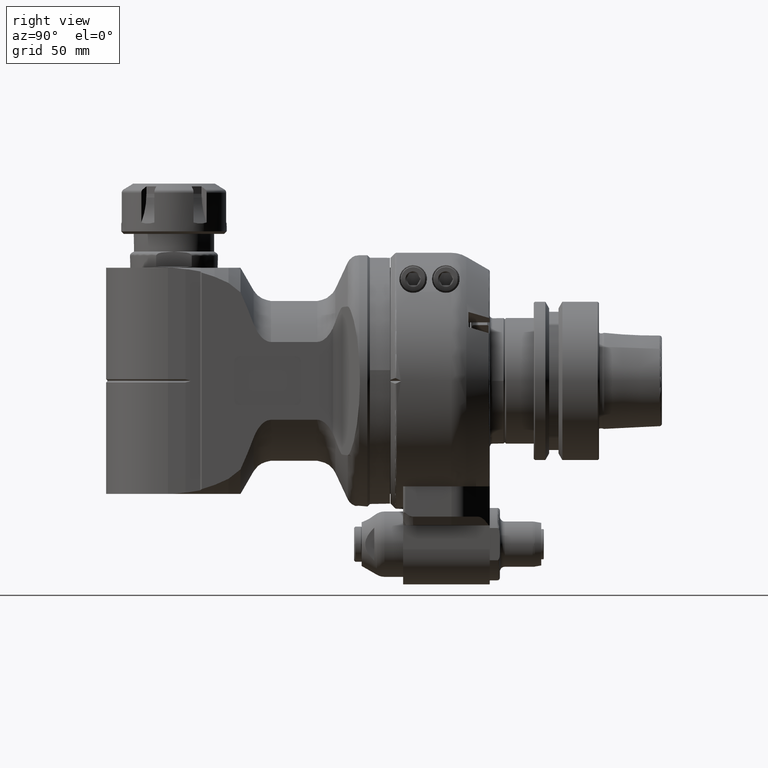
[diagram: clean part render]
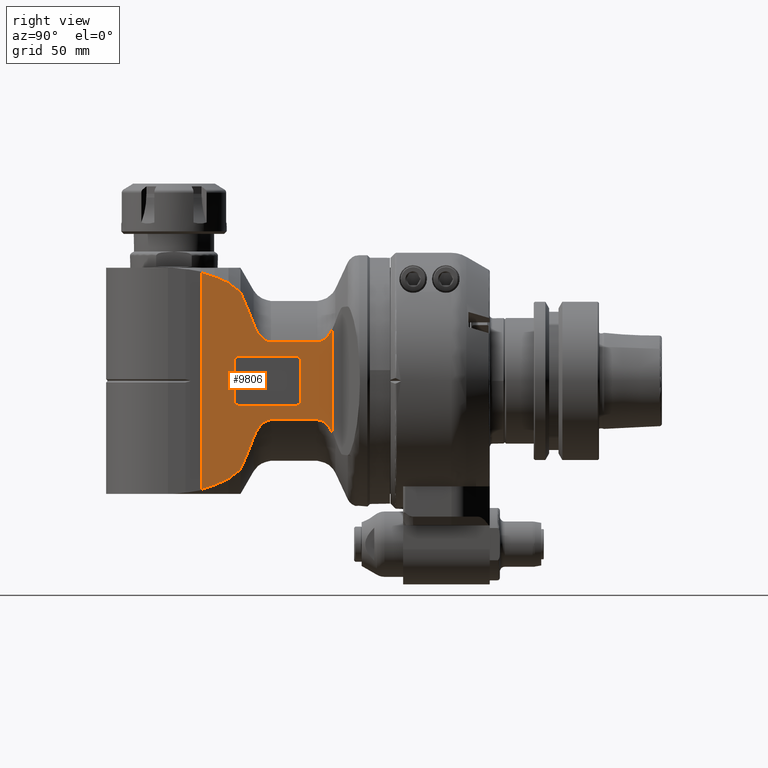
[diagram: same view with one face highlighted and labeled with its STEP entity id]
A machine part, right view. The second image highlights one B-rep face of the part: STEP entity #9806.
In plain terms, the highlighted planar face has unit normal (-1, -0, 0).
Its self-contained STEP definition (entity closure, byte-faithful):
#258=FACE_BOUND('',#1953,.T.);
#347=(
BOUNDED_CURVE()
B_SPLINE_CURVE(2,(#14907,#14908,#14909),.UNSPECIFIED.,.F.,.F.)
B_SPLINE_CURVE_WITH_KNOTS((3,3),(2.03829508689443,3.4431407346025),
 .UNSPECIFIED.)
CURVE()
GEOMETRIC_REPRESENTATION_ITEM()
RATIONAL_B_SPLINE_CURVE((1.39120099195628,1.50411387899984,1.58683863347911))
REPRESENTATION_ITEM('')
);
#348=(
BOUNDED_CURVE()
B_SPLINE_CURVE(2,(#14911,#14912,#14913),.UNSPECIFIED.,.F.,.F.)
B_SPLINE_CURVE_WITH_KNOTS((3,3),(0.672313683726729,1.01595190649578),
 .UNSPECIFIED.)
CURVE()
GEOMETRIC_REPRESENTATION_ITEM()
RATIONAL_B_SPLINE_CURVE((1.09608826691968,1.11929872608592,1.14113299028533))
REPRESENTATION_ITEM('')
);
#349=(
BOUNDED_CURVE()
B_SPLINE_CURVE(2,(#14915,#14916,#14917),.UNSPECIFIED.,.F.,.F.)
B_SPLINE_CURVE_WITH_KNOTS((3,3),(0.468513483581527,0.914044033994154),
 .UNSPECIFIED.)
CURVE()
GEOMETRIC_REPRESENTATION_ITEM()
RATIONAL_B_SPLINE_CURVE((1.00816269921954,1.01172020208802,1.01466218470142))
REPRESENTATION_ITEM('')
);
#350=(
BOUNDED_CURVE()
B_SPLINE_CURVE(2,(#14919,#14920,#14921),.UNSPECIFIED.,.F.,.F.)
B_SPLINE_CURVE_WITH_KNOTS((3,3),(0.114463676018165,0.547284335590246),
 .UNSPECIFIED.)
CURVE()
GEOMETRIC_REPRESENTATION_ITEM()
RATIONAL_B_SPLINE_CURVE((1.00093167360605,1.00265759652838,1.00411472725728))
REPRESENTATION_ITEM('')
);
#351=(
BOUNDED_CURVE()
B_SPLINE_CURVE(2,(#14925,#14926,#14927),.UNSPECIFIED.,.F.,.F.)
B_SPLINE_CURVE_WITH_KNOTS((3,3),(5.23995315173695,5.67277387026535),
 .UNSPECIFIED.)
CURVE()
GEOMETRIC_REPRESENTATION_ITEM()
RATIONAL_B_SPLINE_CURVE((1.00411474580182,1.00265761581078,1.00093169361873))
REPRESENTATION_ITEM('')
);
#352=(
BOUNDED_CURVE()
B_SPLINE_CURVE(2,(#14929,#14930,#14931),.UNSPECIFIED.,.F.,.F.)
B_SPLINE_CURVE_WITH_KNOTS((3,3),(5.17294651881708,5.61846999805118),
 .UNSPECIFIED.)
CURVE()
GEOMETRIC_REPRESENTATION_ITEM()
RATIONAL_B_SPLINE_CURVE((1.01465924264172,1.01171714223274,1.00815952424183))
REPRESENTATION_ITEM('')
);
#353=(
BOUNDED_CURVE()
B_SPLINE_CURVE(2,(#14933,#14934,#14935),.UNSPECIFIED.,.F.,.F.)
B_SPLINE_CURVE_WITH_KNOTS((3,3),(11.9196096698284,12.2632385271259),
 .UNSPECIFIED.)
CURVE()
GEOMETRIC_REPRESENTATION_ITEM()
RATIONAL_B_SPLINE_CURVE((1.14111180481219,1.11927794597239,1.09606791771524))
REPRESENTATION_ITEM('')
);
#354=(
BOUNDED_CURVE()
B_SPLINE_CURVE(2,(#14937,#14938,#14939),.UNSPECIFIED.,.F.,.F.)
B_SPLINE_CURVE_WITH_KNOTS((3,3),(11.1418606523245,12.5466422600916),
 .UNSPECIFIED.)
CURVE()
GEOMETRIC_REPRESENTATION_ITEM()
RATIONAL_B_SPLINE_CURVE((1.58677165235107,1.50405038971858,1.39114226877562))
REPRESENTATION_ITEM('')
);
#447=B_SPLINE_CURVE_WITH_KNOTS('',3,(#14877,#14878,#14879,#14880,#14881,
#14882,#14883,#14884,#14885,#14886,#14887,#14888),.UNSPECIFIED.,.F.,.F.,
(4,2,2,2,2,4),(-2.93597407218818,-2.82337724519284,-2.69378102431655,-2.51186335157645,
-2.32994567883634,-2.12339512890436),.UNSPECIFIED.);
#448=B_SPLINE_CURVE_WITH_KNOTS('',3,(#14892,#14893,#14894,#14895,#14896,
#14897,#14898,#14899,#14900,#14901,#14902,#14903,#14904,#14905),
 .UNSPECIFIED.,.F.,.F.,(4,2,2,2,2,2,4),(-3.92313274375493,-3.77858431950851,
-3.54205696695616,-3.36013929421605,-3.17822162147595,-3.04862540059965,
-2.93602857360432),.UNSPECIFIED.);
#449=B_SPLINE_CURVE_WITH_KNOTS('',3,(#14941,#14942,#14943,#14944,#14945,
#14946,#14947,#14948,#14949,#14950,#14951,#14952,#14953,#14954),
 .UNSPECIFIED.,.F.,.F.,(4,2,2,2,2,2,4),(-2.93597407218818,-2.82337724519285,
-2.69378102431655,-2.51186335157645,-2.32994567883634,-2.09341832628399,
-1.94886990203757),.UNSPECIFIED.);
#450=B_SPLINE_CURVE_WITH_KNOTS('',3,(#14957,#14958,#14959,#14960,#14961,
#14962,#14963,#14964,#14965,#14966,#14967,#14968),.UNSPECIFIED.,.F.,.F.,
(4,2,2,2,2,4),(-3.74855301569093,-3.54200246554002,-3.36008479279991,-3.17816712005981,
-3.04857089918352,-2.93597407218818),.UNSPECIFIED.);
#759=CIRCLE('',#10484,2.);
#760=CIRCLE('',#10486,2.);
#761=CIRCLE('',#10487,2.);
#762=CIRCLE('',#10488,2.);
#1335=FACE_OUTER_BOUND('',#1952,.T.);
#1952=EDGE_LOOP('',(#6495,#6496,#6497,#6498,#6499,#6500,#6501,#6502,#6503,
#6504,#6505,#6506,#6507,#6508,#6509,#6510));
#1953=EDGE_LOOP('',(#6511,#6512,#6513,#6514,#6515,#6516,#6517,#6518));
#2657=LINE('',#14852,#3311);
#2663=LINE('',#14875,#3317);
#2664=LINE('',#14890,#3318);
#2665=LINE('',#14923,#3319);
#2666=LINE('',#14956,#3320);
#2667=LINE('',#14970,#3321);
#2668=LINE('',#14974,#3322);
#2669=LINE('',#14978,#3323);
#3311=VECTOR('',#11721,15.5);
#3317=VECTOR('',#11743,41.77019528796);
#3318=VECTOR('',#11744,18.39109797347);
#3319=VECTOR('',#11745,10.);
#3320=VECTOR('',#11746,18.39109797347);
#3321=VECTOR('',#11747,22.5);
#3322=VECTOR('',#11750,15.5);
#3323=VECTOR('',#11753,22.5);
#3965=VERTEX_POINT('',#14849);
#3966=VERTEX_POINT('',#14851);
#3973=VERTEX_POINT('',#14869);
#3974=VERTEX_POINT('',#14873);
#3975=VERTEX_POINT('',#14874);
#3976=VERTEX_POINT('',#14876);
#3977=VERTEX_POINT('',#14889);
#3978=VERTEX_POINT('',#14891);
#3979=VERTEX_POINT('',#14906);
#3980=VERTEX_POINT('',#14910);
#3981=VERTEX_POINT('',#14914);
#3982=VERTEX_POINT('',#14918);
#3983=VERTEX_POINT('',#14922);
#3984=VERTEX_POINT('',#14924);
#3985=VERTEX_POINT('',#14928);
#3986=VERTEX_POINT('',#14932);
#3987=VERTEX_POINT('',#14936);
#3988=VERTEX_POINT('',#14940);
#3989=VERTEX_POINT('',#14955);
#3990=VERTEX_POINT('',#14969);
#3991=VERTEX_POINT('',#14971);
#3992=VERTEX_POINT('',#14973);
#3993=VERTEX_POINT('',#14975);
#3994=VERTEX_POINT('',#14977);
#4957=EDGE_CURVE('',#3966,#3965,#2657,.T.);
#4967=EDGE_CURVE('',#3965,#3973,#759,.T.);
#4968=EDGE_CURVE('',#3974,#3975,#2663,.T.);
#4969=EDGE_CURVE('',#3976,#3974,#447,.T.);
#4970=EDGE_CURVE('',#3977,#3976,#2664,.T.);
#4971=EDGE_CURVE('',#3978,#3977,#448,.T.);
#4972=EDGE_CURVE('',#3979,#3978,#347,.T.);
#4973=EDGE_CURVE('',#3980,#3979,#348,.T.);
#4974=EDGE_CURVE('',#3981,#3980,#349,.T.);
#4975=EDGE_CURVE('',#3982,#3981,#350,.T.);
#4976=EDGE_CURVE('',#3983,#3982,#2665,.T.);
#4977=EDGE_CURVE('',#3984,#3983,#351,.T.);
#4978=EDGE_CURVE('',#3985,#3984,#352,.T.);
#4979=EDGE_CURVE('',#3986,#3985,#353,.T.);
#4980=EDGE_CURVE('',#3987,#3986,#354,.T.);
#4981=EDGE_CURVE('',#3988,#3987,#449,.T.);
#4982=EDGE_CURVE('',#3989,#3988,#2666,.T.);
#4983=EDGE_CURVE('',#3975,#3989,#450,.T.);
#4984=EDGE_CURVE('',#3973,#3990,#2667,.T.);
#4985=EDGE_CURVE('',#3990,#3991,#760,.T.);
#4986=EDGE_CURVE('',#3991,#3992,#2668,.T.);
#4987=EDGE_CURVE('',#3992,#3993,#761,.T.);
#4988=EDGE_CURVE('',#3993,#3994,#2669,.T.);
#4989=EDGE_CURVE('',#3994,#3966,#762,.T.);
#6495=ORIENTED_EDGE('',*,*,#4968,.F.);
#6496=ORIENTED_EDGE('',*,*,#4969,.F.);
#6497=ORIENTED_EDGE('',*,*,#4970,.F.);
#6498=ORIENTED_EDGE('',*,*,#4971,.F.);
#6499=ORIENTED_EDGE('',*,*,#4972,.F.);
#6500=ORIENTED_EDGE('',*,*,#4973,.F.);
#6501=ORIENTED_EDGE('',*,*,#4974,.F.);
#6502=ORIENTED_EDGE('',*,*,#4975,.F.);
#6503=ORIENTED_EDGE('',*,*,#4976,.F.);
#6504=ORIENTED_EDGE('',*,*,#4977,.F.);
#6505=ORIENTED_EDGE('',*,*,#4978,.F.);
#6506=ORIENTED_EDGE('',*,*,#4979,.F.);
#6507=ORIENTED_EDGE('',*,*,#4980,.F.);
#6508=ORIENTED_EDGE('',*,*,#4981,.F.);
#6509=ORIENTED_EDGE('',*,*,#4982,.F.);
#6510=ORIENTED_EDGE('',*,*,#4983,.F.);
#6511=ORIENTED_EDGE('',*,*,#4957,.T.);
#6512=ORIENTED_EDGE('',*,*,#4967,.T.);
#6513=ORIENTED_EDGE('',*,*,#4984,.T.);
#6514=ORIENTED_EDGE('',*,*,#4985,.T.);
#6515=ORIENTED_EDGE('',*,*,#4986,.T.);
#6516=ORIENTED_EDGE('',*,*,#4987,.T.);
#6517=ORIENTED_EDGE('',*,*,#4988,.T.);
#6518=ORIENTED_EDGE('',*,*,#4989,.T.);
#9529=PLANE('',#10485);
#9806=ADVANCED_FACE('',(#1335,#258),#9529,.F.);
#10484=AXIS2_PLACEMENT_3D('',#14871,#11739,#11740);
#10485=AXIS2_PLACEMENT_3D('',#14872,#11741,#11742);
#10486=AXIS2_PLACEMENT_3D('',#14972,#11748,#11749);
#10487=AXIS2_PLACEMENT_3D('',#14976,#11751,#11752);
#10488=AXIS2_PLACEMENT_3D('',#14979,#11754,#11755);
#11721=DIRECTION('',(0.,1.,0.));
#11739=DIRECTION('center_axis',(0.,0.,-1.));
#11740=DIRECTION('ref_axis',(-1.,0.,0.));
#11741=DIRECTION('center_axis',(0.,0.,-1.));
#11742=DIRECTION('ref_axis',(-1.,0.,0.));
#11743=DIRECTION('',(-2.644841353164E-11,1.,6.212329277148E-13));
#11744=DIRECTION('',(-1.,0.,0.));
#11745=DIRECTION('',(0.,-1.,0.));
#11746=DIRECTION('',(1.,0.,0.));
#11747=DIRECTION('',(1.,0.,0.));
#11748=DIRECTION('center_axis',(0.,0.,-1.));
#11749=DIRECTION('ref_axis',(0.,1.,0.));
#11750=DIRECTION('',(0.,-1.,0.));
#11751=DIRECTION('center_axis',(0.,0.,-1.));
#11752=DIRECTION('ref_axis',(1.,0.,0.));
#11753=DIRECTION('',(-1.,0.,0.));
#11754=DIRECTION('center_axis',(0.,0.,-1.));
#11755=DIRECTION('ref_axis',(0.,-1.,0.));
#14849=CARTESIAN_POINT('',(39.5,7.75,28.));
#14851=CARTESIAN_POINT('',(39.5,-7.75,28.));
#14852=CARTESIAN_POINT('',(39.5,-7.75,28.));
#14869=CARTESIAN_POINT('',(41.5,9.75,28.));
#14871=CARTESIAN_POINT('Origin',(41.5,7.75,28.));
#14872=CARTESIAN_POINT('Origin',(65.03992163408,-45.,28.));
#14873=CARTESIAN_POINT('',(26.80083020115,-20.88509764292,27.99999999999));
#14874=CARTESIAN_POINT('',(26.80083020004,20.88509764504,28.00000000002));
#14875=CARTESIAN_POINT('',(26.80083020115,-20.88509764292,27.99999999999));
#14876=CARTESIAN_POINT('',(32.99009987301,-15.49193338483,28.));
#14877=CARTESIAN_POINT('Ctrl Pts',(32.99009987301,-15.4919333848297,28.));
#14878=CARTESIAN_POINT('Ctrl Pts',(32.6147771163589,-15.4919333848297,28.));
#14879=CARTESIAN_POINT('Ctrl Pts',(32.1698889724911,-15.5620993782773,28.));
#14880=CARTESIAN_POINT('Ctrl Pts',(31.3977248933945,-15.7977099228234,28.));
#14881=CARTESIAN_POINT('Ctrl Pts',(30.9310586317008,-16.0234209939818,28.));
#14882=CARTESIAN_POINT('Ctrl Pts',(30.053798895377,-16.5789816504194,28.));
#14883=CARTESIAN_POINT('Ctrl Pts',(29.550628761613,-17.0081024201193,28.));
#14884=CARTESIAN_POINT('Ctrl Pts',(28.6408811523053,-17.9652022129463,28.));
#14885=CARTESIAN_POINT('Ctrl Pts',(28.233192022949,-18.4921239661789,28.));
#14886=CARTESIAN_POINT('Ctrl Pts',(27.5057921800039,-19.563403638085,28.));
#14887=CARTESIAN_POINT('Ctrl Pts',(27.1316615896629,-20.2094567222412,28.));
#14888=CARTESIAN_POINT('Ctrl Pts',(26.8008302011161,-20.8850976429034,28.));
#14889=CARTESIAN_POINT('',(51.38119784648,-15.49193338483,28.));
#14890=CARTESIAN_POINT('',(51.38119784648,-15.49193338483,28.));
#14891=CARTESIAN_POINT('',(58.30940107676,-22.62741699797,28.));
#14892=CARTESIAN_POINT('Ctrl Pts',(58.3094010767562,-22.6274169979714,28.));
#14893=CARTESIAN_POINT('Ctrl Pts',(58.1351990449167,-22.1473726465381,28.));
#14894=CARTESIAN_POINT('Ctrl Pts',(57.9345741249346,-21.6588360308127,28.));
#14895=CARTESIAN_POINT('Ctrl Pts',(57.3473059591154,-20.3989143849032,28.));
#14896=CARTESIAN_POINT('Ctrl Pts',(56.9216365696334,-19.6460707325903,28.));
#14897=CARTESIAN_POINT('Ctrl Pts',(56.138105696541,-18.4921239661789,28.));
#14898=CARTESIAN_POINT('Ctrl Pts',(55.7304165671847,-17.9652022129463,28.));
#14899=CARTESIAN_POINT('Ctrl Pts',(54.820668957877,-17.0081024201193,28.));
#14900=CARTESIAN_POINT('Ctrl Pts',(54.317498824113,-16.5789816504194,28.));
#14901=CARTESIAN_POINT('Ctrl Pts',(53.4402390877892,-16.0234209939818,28.));
#14902=CARTESIAN_POINT('Ctrl Pts',(52.9735728260955,-15.7977099228234,28.));
#14903=CARTESIAN_POINT('Ctrl Pts',(52.201408746999,-15.5620993782773,28.));
#14904=CARTESIAN_POINT('Ctrl Pts',(51.7565206031311,-15.4919333848297,28.));
#14905=CARTESIAN_POINT('Ctrl Pts',(51.38119784648,-15.4919333848297,28.));
#14906=CARTESIAN_POINT('',(63.5055535658792,-35.2278300211652,27.9999999663392));
#14907=CARTESIAN_POINT('Ctrl Pts',(63.5055535533539,-35.227830026851,28.));
#14908=CARTESIAN_POINT('Ctrl Pts',(60.3416369571528,-28.2276005599088,28.));
#14909=CARTESIAN_POINT('Ctrl Pts',(58.3094010767572,-22.627416997971,28.));
#14910=CARTESIAN_POINT('',(68.3065571929701,-38.9871774622474,27.9999999732598));
#14911=CARTESIAN_POINT('Ctrl Pts',(68.3065571936772,-38.9871774616192,28.));
#14912=CARTESIAN_POINT('Ctrl Pts',(65.784458419838,-37.0468690861177,28.));
#14913=CARTESIAN_POINT('Ctrl Pts',(63.5055535954088,-35.2278299841974,28.));
#14914=CARTESIAN_POINT('',(73.8015119749748,-41.4246303787627,27.9999999918341));
#14915=CARTESIAN_POINT('Ctrl Pts',(73.8015119759787,-41.4246303765944,28.));
#14916=CARTESIAN_POINT('Ctrl Pts',(70.9707527072439,-40.1810319362407,28.));
#14917=CARTESIAN_POINT('Ctrl Pts',(68.3065572062449,-38.9871774328566,28.));
#14918=CARTESIAN_POINT('',(78.9900004606529,-43.0924350883644,27.9999998116525));
#14919=CARTESIAN_POINT('Ctrl Pts',(78.9900005706562,-43.0924347540927,28.));
#14920=CARTESIAN_POINT('Ctrl Pts',(76.344563156999,-42.2470981928416,28.));
#14921=CARTESIAN_POINT('Ctrl Pts',(73.8015119774522,-41.4246303712171,28.));
#14922=CARTESIAN_POINT('',(78.9900004606529,43.0924350883644,27.9999998116525));
#14923=CARTESIAN_POINT('',(78.99,-22.5,28.));
#14924=CARTESIAN_POINT('',(73.8015119749706,41.4246303787606,27.9999999918348));
#14925=CARTESIAN_POINT('Ctrl Pts',(73.8015119774478,41.4246303712157,28.));
#14926=CARTESIAN_POINT('Ctrl Pts',(76.3445631569967,42.2470981928409,28.));
#14927=CARTESIAN_POINT('Ctrl Pts',(78.9900005706562,43.0924347540927,28.));
#14928=CARTESIAN_POINT('',(68.3065571929678,38.9871774622456,27.9999999732604));
#14929=CARTESIAN_POINT('Ctrl Pts',(68.3065572062423,38.9871774328554,28.));
#14930=CARTESIAN_POINT('Ctrl Pts',(70.9707527072405,40.1810319362392,28.));
#14931=CARTESIAN_POINT('Ctrl Pts',(73.8015119759744,41.4246303765926,28.));
#14932=CARTESIAN_POINT('',(63.5055535658784,35.2278300211639,27.9999999663396));
#14933=CARTESIAN_POINT('Ctrl Pts',(63.5055535954077,35.2278299841965,28.));
#14934=CARTESIAN_POINT('Ctrl Pts',(65.7844584198363,37.0468690861164,28.));
#14935=CARTESIAN_POINT('Ctrl Pts',(68.3065571936748,38.9871774616174,28.));
#14936=CARTESIAN_POINT('',(58.30940107676,22.62741699797,28.));
#14937=CARTESIAN_POINT('Ctrl Pts',(58.3094010767572,22.627416997971,28.));
#14938=CARTESIAN_POINT('Ctrl Pts',(60.3416369571526,28.2276005599083,28.));
#14939=CARTESIAN_POINT('Ctrl Pts',(63.5055535533533,35.2278300268497,28.));
#14940=CARTESIAN_POINT('',(51.38119784648,15.49193338483,28.));
#14941=CARTESIAN_POINT('Ctrl Pts',(51.38119784648,15.4919333848297,28.));
#14942=CARTESIAN_POINT('Ctrl Pts',(51.7565206031311,15.4919333848297,28.));
#14943=CARTESIAN_POINT('Ctrl Pts',(52.201408746999,15.5620993782773,28.));
#14944=CARTESIAN_POINT('Ctrl Pts',(52.9735728260955,15.7977099228234,28.));
#14945=CARTESIAN_POINT('Ctrl Pts',(53.4402390877892,16.0234209939818,28.));
#14946=CARTESIAN_POINT('Ctrl Pts',(54.317498824113,16.5789816504194,28.));
#14947=CARTESIAN_POINT('Ctrl Pts',(54.820668957877,17.0081024201193,28.));
#14948=CARTESIAN_POINT('Ctrl Pts',(55.7304165671847,17.9652022129463,28.));
#14949=CARTESIAN_POINT('Ctrl Pts',(56.138105696541,18.4921239661789,28.));
#14950=CARTESIAN_POINT('Ctrl Pts',(56.9216365696334,19.6460707325903,28.));
#14951=CARTESIAN_POINT('Ctrl Pts',(57.3473059591154,20.3989143849032,28.));
#14952=CARTESIAN_POINT('Ctrl Pts',(57.9345741249346,21.6588360308126,28.));
#14953=CARTESIAN_POINT('Ctrl Pts',(58.1351990449167,22.1473726465381,28.));
#14954=CARTESIAN_POINT('Ctrl Pts',(58.3094010767562,22.6274169979714,28.));
#14955=CARTESIAN_POINT('',(32.99009987301,15.49193338483,28.));
#14956=CARTESIAN_POINT('',(32.99009987301,15.49193338483,28.));
#14957=CARTESIAN_POINT('Ctrl Pts',(26.8008302000641,20.8850976450518,28.));
#14958=CARTESIAN_POINT('Ctrl Pts',(27.1316615888732,20.2094567236125,28.));
#14959=CARTESIAN_POINT('Ctrl Pts',(27.505792179594,19.5634036386887,28.));
#14960=CARTESIAN_POINT('Ctrl Pts',(28.233192022949,18.4921239661789,28.));
#14961=CARTESIAN_POINT('Ctrl Pts',(28.6408811523053,17.9652022129463,28.));
#14962=CARTESIAN_POINT('Ctrl Pts',(29.550628761613,17.0081024201193,28.));
#14963=CARTESIAN_POINT('Ctrl Pts',(30.053798895377,16.5789816504194,28.));
#14964=CARTESIAN_POINT('Ctrl Pts',(30.9310586317008,16.0234209939818,28.));
#14965=CARTESIAN_POINT('Ctrl Pts',(31.3977248933945,15.7977099228234,28.));
#14966=CARTESIAN_POINT('Ctrl Pts',(32.1698889724911,15.5620993782773,28.));
#14967=CARTESIAN_POINT('Ctrl Pts',(32.6147771163589,15.4919333848297,28.));
#14968=CARTESIAN_POINT('Ctrl Pts',(32.99009987301,15.4919333848297,28.));
#14969=CARTESIAN_POINT('',(64.,9.75,28.));
#14970=CARTESIAN_POINT('',(41.5,9.75,28.));
#14971=CARTESIAN_POINT('',(66.,7.75,28.));
#14972=CARTESIAN_POINT('Origin',(64.,7.75,28.));
#14973=CARTESIAN_POINT('',(66.,-7.75,28.));
#14974=CARTESIAN_POINT('',(66.,7.75,28.));
#14975=CARTESIAN_POINT('',(64.,-9.75,28.));
#14976=CARTESIAN_POINT('Origin',(64.,-7.75,28.));
#14977=CARTESIAN_POINT('',(41.5,-9.75,28.));
#14978=CARTESIAN_POINT('',(64.,-9.75,28.));
#14979=CARTESIAN_POINT('Origin',(41.5,-7.75,28.));